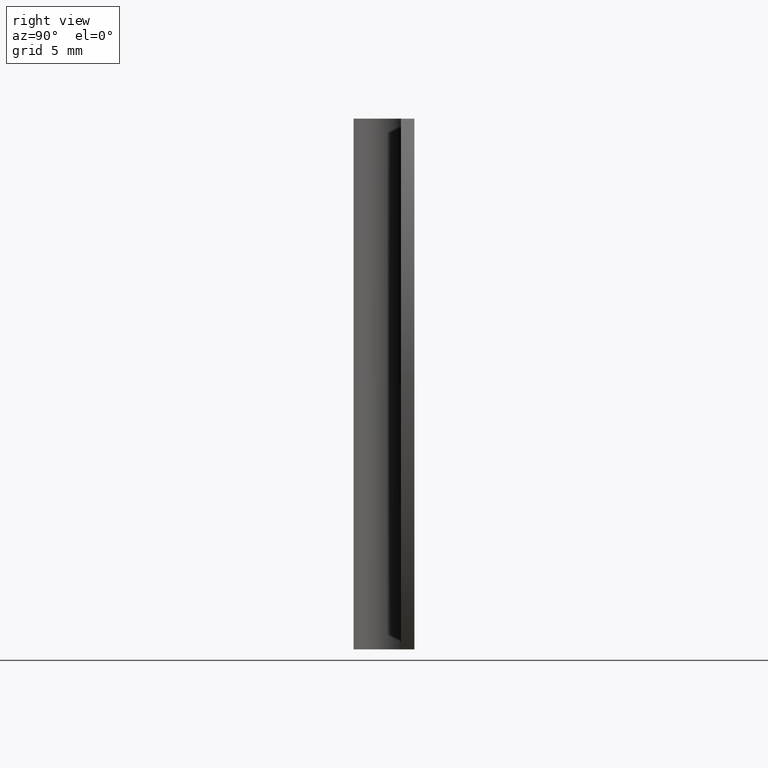
[diagram: clean part render]
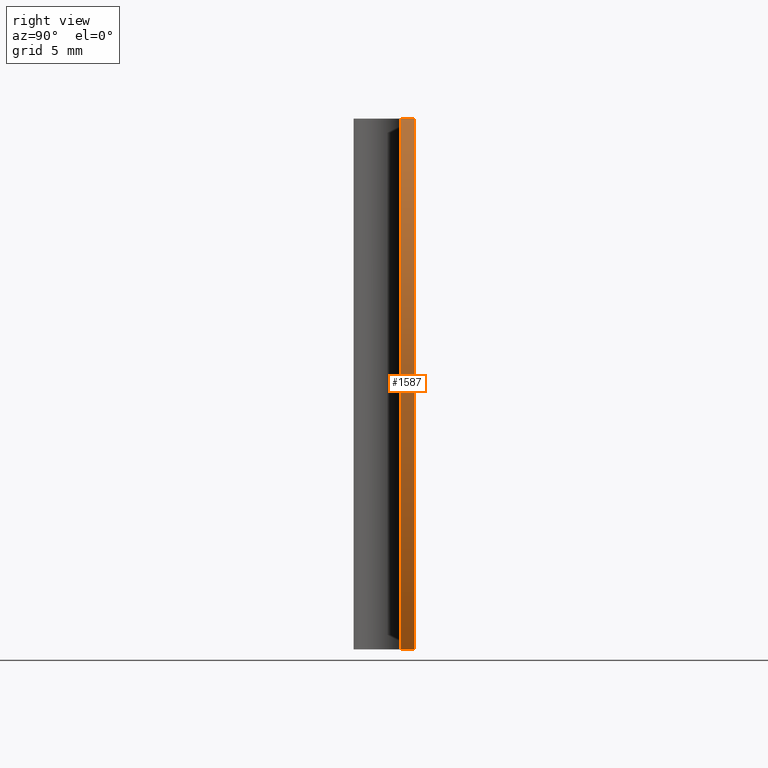
[diagram: same view with one face highlighted and labeled with its STEP entity id]
A machine part, right view. The second image highlights one B-rep face of the part: STEP entity #1587.
In plain terms, the highlighted face is a freeform B-spline surface patch.
Its self-contained STEP definition (entity closure, byte-faithful):
#1527=CARTESIAN_POINT('',(12.827294741196249,1.224999999999971,-0.281573066417455));
#1528=CARTESIAN_POINT('',(12.827294741196249,2.275625000000001,-0.281573066417455));
#1529=CARTESIAN_POINT('',(25.771010933713921,1.224999999999971,20.615933206782575));
#1530=CARTESIAN_POINT('',(25.771010933713921,2.275625000000000,20.615933206782575));
#1531=CARTESIAN_POINT('',(11.944872674844801,1.224999999999971,40.940387889688928));
#1532=CARTESIAN_POINT('',(11.944872674844801,2.275625000000001,40.940387889688928));
#1540=(BOUNDED_SURFACE()B_SPLINE_SURFACE(1,2,((#1527,#1529,#1531),(#1528,#1530,#1532)),.UNSPECIFIED.,.F.,.F.,.U.)B_SPLINE_SURFACE_WITH_KNOTS((2,2),(3,3),(0.0,1.0),(0.0,44.849148533355660),.UNSPECIFIED.)GEOMETRIC_REPRESENTATION_ITEM()RATIONAL_B_SPLINE_SURFACE(((1.0,0.838670567945424,1.0),(1.0,0.838670567945424,1.0)))REPRESENTATION_ITEM('')SURFACE());
#1541=CARTESIAN_POINT('',(13.000003047973660,2.249999999999975,-7.105427E-015));
#1542=VERTEX_POINT('',#1541);
#1543=CARTESIAN_POINT('',(13.000003655354099,2.250000000000000,39.300003000000103));
#1544=VERTEX_POINT('',#1543);
#1545=CARTESIAN_POINT('',(13.000003047973660,2.249999999999975,-1.387779E-014));
#1546=CARTESIAN_POINT('',(24.935030729928812,2.249999999999975,19.650001315544525));
#1547=CARTESIAN_POINT('',(13.000003655354091,2.249999999999975,39.300003000000082));
#1555=(BOUNDED_CURVE()B_SPLINE_CURVE(2,(#1545,#1546,#1547),.UNSPECIFIED.,.F.,.U.)CURVE()GEOMETRIC_REPRESENTATION_ITEM()QUASI_UNIFORM_CURVE()RATIONAL_B_SPLINE_CURVE((1.0,0.854697405180328,1.0))REPRESENTATION_ITEM(''));
#1556=EDGE_CURVE('',#1542,#1544,#1555,.T.);
#1557=ORIENTED_EDGE('',*,*,#1556,.T.);
#1558=CARTESIAN_POINT('',(13.000003655354099,1.249999999999972,39.300003000000103));
#1559=VERTEX_POINT('',#1558);
#1560=CARTESIAN_POINT('',(13.000003655354099,1.249999999999972,39.300003000000103));
#1561=CARTESIAN_POINT('',(13.000003655354099,2.250000000000000,39.300003000000103));
#1562=QUASI_UNIFORM_CURVE('',1,(#1560,#1561),.UNSPECIFIED.,.F.,.U.);
#1563=EDGE_CURVE('',#1559,#1544,#1562,.T.);
#1564=ORIENTED_EDGE('',*,*,#1563,.F.);
#1565=CARTESIAN_POINT('',(13.000003047973660,1.249999999999972,-7.105427E-015));
#1566=VERTEX_POINT('',#1565);
#1567=CARTESIAN_POINT('',(13.000003047973660,1.249999999999972,-1.387779E-014));
#1568=CARTESIAN_POINT('',(24.935030729928812,1.249999999999972,19.650001315544525));
#1569=CARTESIAN_POINT('',(13.000003655354091,1.249999999999972,39.300003000000082));
#1577=(BOUNDED_CURVE()B_SPLINE_CURVE(2,(#1567,#1568,#1569),.UNSPECIFIED.,.F.,.U.)CURVE()GEOMETRIC_REPRESENTATION_ITEM()QUASI_UNIFORM_CURVE()RATIONAL_B_SPLINE_CURVE((1.0,0.854697405180328,1.0))REPRESENTATION_ITEM(''));
#1578=EDGE_CURVE('',#1566,#1559,#1577,.T.);
#1579=ORIENTED_EDGE('',*,*,#1578,.F.);
#1580=CARTESIAN_POINT('',(13.000003047973660,1.249999999999972,-7.105427E-015));
#1581=CARTESIAN_POINT('',(13.000003047973660,2.249999999999975,-7.105427E-015));
#1582=QUASI_UNIFORM_CURVE('',1,(#1580,#1581),.UNSPECIFIED.,.F.,.U.);
#1583=EDGE_CURVE('',#1566,#1542,#1582,.T.);
#1584=ORIENTED_EDGE('',*,*,#1583,.T.);
#1585=EDGE_LOOP('',(#1557,#1564,#1579,#1584));
#1586=FACE_OUTER_BOUND('',#1585,.T.);
#1587=ADVANCED_FACE('',(#1586),#1540,.T.);